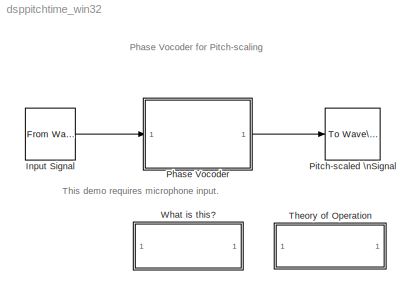
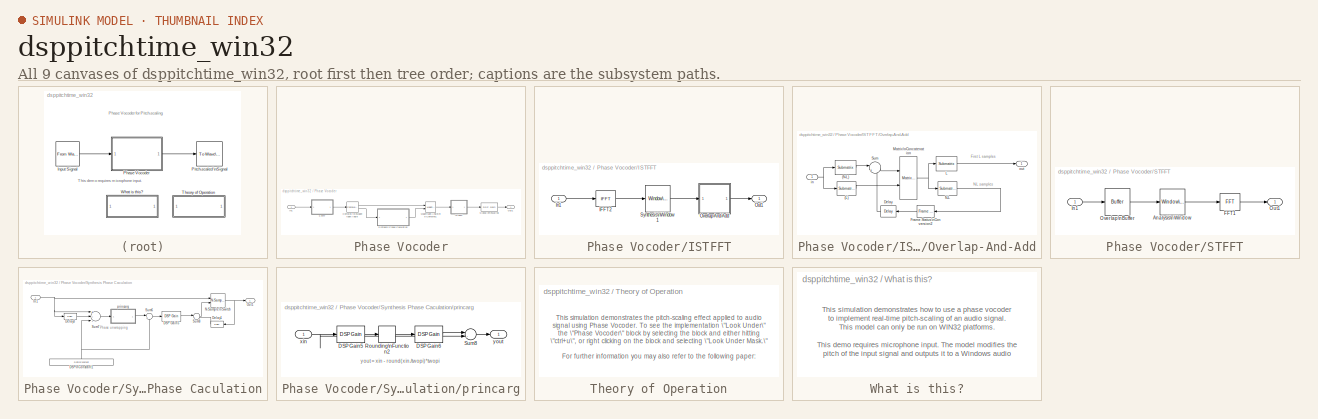
[diagram: thumbnail index - all 9 canvases of the model, root first then tree order]
MODEL dsppitchtime_win32
KIND model
BLOCK [Reference] Input Signal  REF=dspwin32/From Wave\nDevice
  Ports = [0, 1]
  QueueDuration = 3
  SampleRate = 8000
  SampleWidth = 16
  SamplesPerFrame = 64
  SourceBlock = dspwin32/From Wave\nDevice
  SourceType = From Wave Device
  Stereo = off
  UserRate = 16000
  dType = double
  useDefaultDevice = on
  userDeviceID = INPUTDEVS
BLOCK [SubSystem] Phase Vocoder
  MaskCallbackString = ||
  MaskDescription = Algorithm for time-stretching and pitch-scaling of an audio signal. Time-stretching changes the speed of an audio signal without affecting its pitch. Pitch-scaling changes the pitch of an audio signal without affecting its speed. \n\nThe pitch-scaling and time-stretching factors are defined by the ratio of the Synthesis hop-size parameter to the Analysis hop-size parameter. \n\nThe Window size par...<+204ch>
  MaskDisplay = disp('Phase Vocoder')
  MaskEnableString = on,on,on
  MaskIconFrame = on
  MaskIconOpaque = on
  MaskIconRotate = none
  MaskIconUnits = autoscale
  MaskPromptString = Analysis hop-size (i.e., temporal shift of analysis window) (in samples):|Window size (in samples):|Synthesis hop-size (i.e., temporal shift of synthesis window) (in samples):
  MaskStyleString = edit,edit,edit
  MaskTabNameString = ,,
  MaskToolTipString = on,on,on
  MaskTunableValueString = off,off,off
  MaskType = Phase Vocoder
  MaskValueString = 64|256|90
  MaskVarAliasString = ,,
  MaskVariables = ana_hopSize=@1;winLen=@2;syn_hopSize=@3;
  MaskVisibilityString = on,on,on
  MinAlgLoopOccurrences = off
  Ports = [1, 1]
  PropExecContextAcrossSSBoundary = on
  RTWSystemCode = Auto
  TreatAsAtomicUnit = off
BLOCK [ComplexToMagnitudeAngle] Phase Vocoder/Complex to\nMagnitude-Angle
  Output = Magnitude and angle
  Ports = [1, 2]
BLOCK [SubSystem] Phase Vocoder/ISTFFT
  MaskDisplay = disp('Overlap\\nIST-FFT')
  MaskIconFrame = on
  MaskIconOpaque = on
  MaskIconRotate = none
  MaskIconUnits = autoscale
  MinAlgLoopOccurrences = off
  Ports = [1, 1]
  PropExecContextAcrossSSBoundary = on
  RTWSystemCode = Auto
  TreatAsAtomicUnit = off
BLOCK [Reference] Phase Vocoder/ISTFFT/IFFT2  REF=dspxfrm3/IFFT
  BitRevOrder = off
  CompMethod = Table lookup
  DialogController = dspDDGCreate
  DialogControllerArgs = DataTag0
  Ports = [1, 1]
  SkipNorm = on
  SourceBlock = dspxfrm3/IFFT
  SourceType = IFFT
  TableOpt = Speed
  accumFracLength = 30
  accumMode = Same as product output
  accumWordLength = 32
  additionalParams = off
  allowOverrides = on
  cs_in = on
  firstCoeffFracLength = 15
  firstCoeffMode = User-defined
  firstCoeffWordLength = 16
  mode = Complex
  outputFracLength = 15
  outputMode = Same as input
  outputWordLength = 16
  overflowMode = off
  prodOutputFracLength = 30
  prodOutputMode = Same as input
  prodOutputWordLength = 32
  roundingMode = Floor
BLOCK [Inport] Phase Vocoder/ISTFFT/In1
  IconDisplay = Port number
  LatchInput = off
BLOCK [Outport] Phase Vocoder/ISTFFT/Out1
  BusOutputAsStruct = off
  IconDisplay = Port number
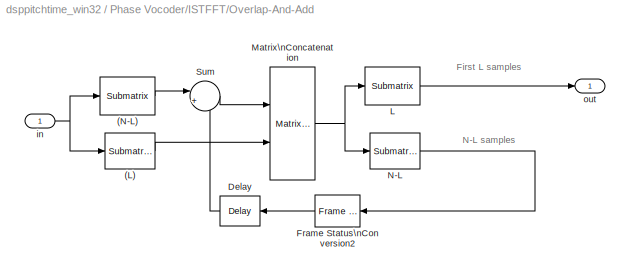
BLOCK [SubSystem] Phase Vocoder/ISTFFT/Overlap-And-Add
  MaskDescription = Performs overlap-and-add on the input signal. Disjoint frames of the input signal are overlapped with each other for a specified number of points and summed. \n
  MaskDisplay = disp('Overlap\\nAnd\\nAdd')
  MaskEnableString = on
  MaskIconFrame = on
  MaskIconOpaque = on
  MaskIconRotate = none
  MaskIconUnits = autoscale
  MaskPromptString = Number of new points in each frame
  MaskStyleString = edit
  MaskToolTipString = on
  MaskTunableValueString = on
  MaskType = Overlap-And-Add
  MaskValueString = syn_hopSize
  MaskVariables = L=@1;
  MaskVisibilityString = on
  MinAlgLoopOccurrences = off
  Ports = [1, 1]
  PropExecContextAcrossSSBoundary = on
  RTWSystemCode = Auto
  TreatAsAtomicUnit = off
BLOCK [Reference] Phase Vocoder/ISTFFT/Overlap-And-Add/(L)  REF=dspmtrx3/Submatrix
  ColEndIndex = 1
  ColEndMode = Last
  ColSpan = All columns
  ColStartIndex = 1
  ColStartMode = First
  Ports = [1, 1]
  RowEndIndex = 1
  RowEndMode = Last
  RowSpan = Range of rows
  RowStartIndex = L-1
  RowStartMode = Offset from last
  SourceBlock = dspmtrx3/Submatrix
  SourceType = Submatrix
BLOCK [Reference] Phase Vocoder/ISTFFT/Overlap-And-Add/(N-L)  REF=dspmtrx3/Submatrix
  ColEndIndex = 1
  ColEndMode = Last
  ColSpan = All columns
  ColStartIndex = 1
  ColStartMode = First
  Ports = [1, 1]
  RowEndIndex = L
  RowEndMode = Offset from last
  RowSpan = Range of rows
  RowStartIndex = 1
  RowStartMode = First
  SourceBlock = dspmtrx3/Submatrix
  SourceType = Submatrix
BLOCK [Reference] Phase Vocoder/ISTFFT/Overlap-And-Add/Delay  REF=dspsigops/Delay
  Ports = [1, 1]
  SourceBlock = dspsigops/Delay
  SourceType = Delay
  delay = 1
  dif_ic_for_ch = off
  dif_ic_for_dly = off
  dly_unit = Samples
  ic = 0
  ic_detail = off
  reset_popup = None
BLOCK [Reference] Phase Vocoder/ISTFFT/Overlap-And-Add/Frame Status\nConversion2  REF=dspsigattribs/Frame Status\nConversion
  Ports = [1, 1]
  ShowPortLabels = off
  SourceBlock = dspsigattribs/Frame Status\nConversion
  SourceType = Frame Status Conversion
  growRefPort = off
  outframe = Sample-based
BLOCK [Reference] Phase Vocoder/ISTFFT/Overlap-And-Add/L  REF=dspmtrx3/Submatrix
  ColEndIndex = 1
  ColEndMode = Last
  ColSpan = All columns
  ColStartIndex = 1
  ColStartMode = First
  Ports = [1, 1]
  RowEndIndex = L
  RowEndMode = Index
  RowSpan = Range of rows
  RowStartIndex = 1
  RowStartMode = First
  SourceBlock = dspmtrx3/Submatrix
  SourceType = Submatrix
BLOCK [Reference] Phase Vocoder/ISTFFT/Overlap-And-Add/Matrix\nConcatenation  REF=simulink/Math\nOperations/Matrix\nConcatenation
  Ports = [2, 1]
  SourceBlock = simulink/Math\nOperations/Matrix\nConcatenation
  SourceType = Matrix Concatenation
  catMethod = Vertical
  numInports = 2
BLOCK [Reference] Phase Vocoder/ISTFFT/Overlap-And-Add/N-L  REF=dspmtrx3/Submatrix
  ColEndIndex = 1
  ColEndMode = Last
  ColSpan = All columns
  ColStartIndex = 1
  ColStartMode = First
  Ports = [1, 1]
  RowEndIndex = 1
  RowEndMode = Last
  RowSpan = Range of rows
  RowStartIndex = L+1
  RowStartMode = Index
  SourceBlock = dspmtrx3/Submatrix
  SourceType = Submatrix
BLOCK [Sum] Phase Vocoder/ISTFFT/Overlap-And-Add/Sum
  IconShape = round
  Inputs = |++
  Ports = [2, 1]
BLOCK [Inport] Phase Vocoder/ISTFFT/Overlap-And-Add/in
  IconDisplay = Port number
  LatchInput = off
BLOCK [Outport] Phase Vocoder/ISTFFT/Overlap-And-Add/out
  BusOutputAsStruct = off
  IconDisplay = Port number
BLOCK [Reference] Phase Vocoder/ISTFFT/Synthesis\nWindow1  REF=dspsigops/Window\nFunction
  DialogController = dspDDGCreate
  DialogControllerArgs = DataTag1
  N = 64
  OptParams = off
  Ports = [1, 1]
  Rs = 50
  SourceBlock = dspsigops/Window\nFunction
  SourceType = Window Function
  UserParams = {1.0}
  UserWindow = hamming
  additionalParams = off
  allowOverrides = on
  beta = 10
  dataType = double
  firstCoeffFracLength = 15
  firstCoeffMode = Same word length as input
  firstCoeffWordLength = 16
  fracBitsMode = Best precision
  isSigned = on
  numFracBits = 15
  outputFracLength = 15
  outputMode = Same as input
  outputWordLength = 16
  overflowMode = off
  prodOutputFracLength = 15
  prodOutputMode = Inherit via internal rule
  prodOutputWordLength = 16
  roundingMode = Floor
  sampmode = Continuous
  samptime = 1
  udDataType = sfix(16)
  winmode = Apply window to input
  winsamp = Periodic
  wintype = Hanning
  wordLen = 16
BLOCK [Inport] Phase Vocoder/In1
  IconDisplay = Port number
  LatchInput = off
BLOCK [MagnitudeAngleToComplex] Phase Vocoder/Magnitude-Angle\nto Complex1
  Input = Magnitude and angle
  Ports = [2, 1]
BLOCK [Outport] Phase Vocoder/Out1
  BusOutputAsStruct = off
  IconDisplay = Port number
BLOCK [SubSystem] Phase Vocoder/STFFT
  MaskDisplay = disp('Overlap\\nST-FFT')
  MaskIconFrame = on
  MaskIconOpaque = on
  MaskIconRotate = none
  MaskIconUnits = autoscale
  MinAlgLoopOccurrences = off
  Ports = [1, 1]
  PropExecContextAcrossSSBoundary = on
  RTWSystemCode = Auto
  TreatAsAtomicUnit = off
BLOCK [Reference] Phase Vocoder/STFFT/Analysis\nWindow  REF=dspsigops/Window\nFunction
  N = 64
  OptParams = off
  Ports = [1, 1]
  Rs = 50
  SourceBlock = dspsigops/Window\nFunction
  SourceType = Window Function
  UserParams = {1.0}
  UserWindow = hamming
  additionalParams = off
  allowOverrides = on
  beta = 10
  dataType = double
  firstCoeffFracLength = 15
  firstCoeffMode = Same word length as input
  firstCoeffWordLength = 16
  fracBitsMode = Best precision
  numFracBits = 15
  outputFracLength = 15
  outputMode = Same as input
  outputWordLength = 16
  overflowMode = off
  prodOutputFracLength = 15
  prodOutputMode = Inherit via internal rule
  prodOutputWordLength = 16
  roundingMode = Floor
  sampmode = Continuous
  samptime = 1
  udDataType = sfix(16)
  winmode = Apply window to input
  winsamp = Periodic
  wintype = Hanning
  wordLen = 16
BLOCK [Reference] Phase Vocoder/STFFT/FFT1  REF=dspxfrm3/FFT
  BitRevOrder = off
  CompMethod = Table lookup
  Ports = [1, 1]
  SkipNorm = off
  SourceBlock = dspxfrm3/FFT
  SourceType = FFT
  TableOpt = Speed
  accumFracLength = 30
  accumMode = Same as product output
  accumWordLength = 32
  additionalParams = off
  allowOverrides = on
  firstCoeffFracLength = 15
  firstCoeffMode = User-defined
  firstCoeffWordLength = 16
  outputFracLength = 15
  outputMode = Same as input
  outputWordLength = 16
  overflowMode = off
  prodOutputFracLength = 30
  prodOutputMode = Same as input
  prodOutputWordLength = 32
  roundingMode = Floor
BLOCK [Inport] Phase Vocoder/STFFT/In1
  IconDisplay = Port number
  LatchInput = off
BLOCK [Outport] Phase Vocoder/STFFT/Out1
  BusOutputAsStruct = off
  IconDisplay = Port number
BLOCK [Reference] Phase Vocoder/STFFT/Overlap\nBuffer  REF=dspbuff3/Buffer
  N = winLen
  Ports = [1, 1]
  SourceBlock = dspbuff3/Buffer
  SourceType = Buffer
  V = winLen-ana_hopSize
  ic = 0
BLOCK [Reference] Phase Vocoder/Signal\nRescaling  REF=dspobslib/DSP Gain
  Ports = [1, 1]
  ShowPortLabels = on
  SourceBlock = dspobslib/DSP Gain
  SourceType = DSP Gain
  additionalParams = off
  allowOverrides = on
  gainFracLength = 15
  gainMode = Same as input
  gainValue = 1/(winLen*sum(hanning(winLen,'periodic').^2)/syn_hopSize)
  gainWordLength = 16
  overflowMode = off
  prodOutputFracLength = 30
  prodOutputMode = Same as input
  prodOutputWordLength = 32
  roundingMode = Floor
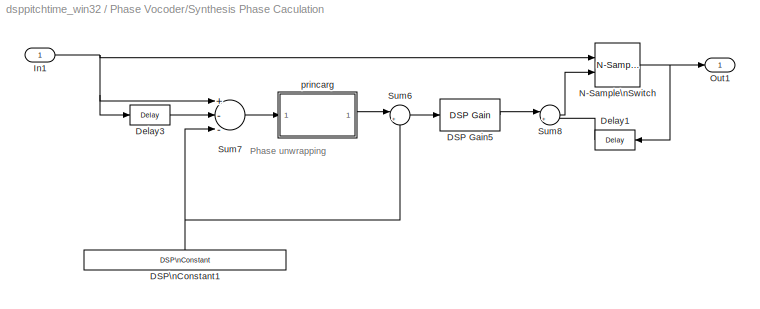
BLOCK [SubSystem] Phase Vocoder/Synthesis Phase Caculation
  MaskCallbackString = ||
  MaskDisplay = disp('Synthesis\\nPhase\\nCalculation')
  MaskEnableString = on,on,on
  MaskIconFrame = on
  MaskIconOpaque = on
  MaskIconRotate = none
  MaskIconUnits = autoscale
  MaskPromptString = Analysis hop size:|Synthesis hop size:|Window size:
  MaskStyleString = edit,edit,edit
  MaskTabNameString = ,,
  MaskToolTipString = on,on,on
  MaskTunableValueString = off,off,off
  MaskValueString = ana_hopSize|syn_hopSize|winLen
  MaskVarAliasString = ,,
  MaskVariables = ana_hopSize=@1;syn_hopSize=@2;winLen=@3;
  MaskVisibilityString = on,on,on
  MinAlgLoopOccurrences = off
  Ports = [1, 1]
  PropExecContextAcrossSSBoundary = on
  RTWSystemCode = Auto
  TreatAsAtomicUnit = off
BLOCK [Reference] Phase Vocoder/Synthesis Phase Caculation/DSP Gain5  REF=dspobslib/DSP Gain
  Ports = [1, 1]
  ShowPortLabels = on
  SourceBlock = dspobslib/DSP Gain
  SourceType = DSP Gain
  additionalParams = off
  allowOverrides = on
  gainFracLength = 15
  gainMode = Same as input
  gainValue = syn_hopSize/ana_hopSize
  gainWordLength = 16
  overflowMode = off
  prodOutputFracLength = 30
  prodOutputMode = Same as input
  prodOutputWordLength = 32
  roundingMode = Floor
BLOCK [Reference] Phase Vocoder/Synthesis Phase Caculation/DSP\nConstant1  REF=dspsrcs4/DSP\nConstant
  FramebasedOutput = -inf
  InterpretAs1D = -inf
  Ports = [0, 1]
  SampleMode = Discrete
  ShowPortLabels = on
  SourceBlock = dspsrcs4/DSP\nConstant
  SourceType = DSP Constant
  Ts = -inf
  Value = 2*pi*ana_hopSize*[0:winLen-1]'/winLen
  additionalParams = off
  allowOverrides = on
  continuousOutput = Sample-based
  dataType = Inherit from 'Constant value'
  discreteOutput = Sample-based
  fracBitsMode = Best precision
  framePeriod = 2
  isSigned = on
  numFracBits = 15
  sampTime = 64/8000
  udDataType = sfix(16)
  wordLen = 16
BLOCK [Reference] Phase Vocoder/Synthesis Phase Caculation/Delay1  REF=dspsigops/Delay
  Ports = [1, 1]
  SourceBlock = dspsigops/Delay
  SourceType = Delay
  delay = 1
  dif_ic_for_ch = off
  dif_ic_for_dly = off
  dly_unit = Frames
  ic = 0
  ic_detail = on
  reset_popup = None
BLOCK [Reference] Phase Vocoder/Synthesis Phase Caculation/Delay3  REF=dspsigops/Delay
  Ports = [1, 1]
  SourceBlock = dspsigops/Delay
  SourceType = Delay
  delay = 1
  dif_ic_for_ch = off
  dif_ic_for_dly = off
  dly_unit = Frames
  ic = 0
  ic_detail = on
  reset_popup = None
BLOCK [Inport] Phase Vocoder/Synthesis Phase Caculation/In1
  IconDisplay = Port number
  LatchInput = off
BLOCK [Reference] Phase Vocoder/Synthesis Phase Caculation/N-Sample\nSwitch  REF=dspswit3/N-Sample\nSwitch
  N = 1
  Ports = [2, 1]
  ShowPortLabels = on
  SourceBlock = dspswit3/N-Sample\nSwitch
  SourceType = N-Sample Switch
  TriggerType = Rising edge
  Ts = -1
  reset = off
BLOCK [Outport] Phase Vocoder/Synthesis Phase Caculation/Out1
  BusOutputAsStruct = off
  IconDisplay = Port number
BLOCK [Sum] Phase Vocoder/Synthesis Phase Caculation/Sum6
  IconShape = round
  InputSameDT = off
  Inputs = |++
  OutDataTypeMode = Inherit via internal rule
  Ports = [2, 1]
BLOCK [Sum] Phase Vocoder/Synthesis Phase Caculation/Sum7
  InputSameDT = off
  Inputs = +--
  OutDataTypeMode = Inherit via internal rule
  Ports = [3, 1]
BLOCK [Sum] Phase Vocoder/Synthesis Phase Caculation/Sum8
  IconShape = round
  InputSameDT = off
  Inputs = |++
  OutDataTypeMode = Inherit via internal rule
  Ports = [2, 1]
BLOCK [SubSystem] Phase Vocoder/Synthesis Phase Caculation/princarg
  MaskDisplay = disp('Principal\\nArgument');
  MaskIconFrame = on
  MaskIconOpaque = on
  MaskIconRotate = none
  MaskIconUnits = autoscale
  MinAlgLoopOccurrences = off
  Ports = [1, 1]
  PropExecContextAcrossSSBoundary = on
  RTWSystemCode = Auto
  TreatAsAtomicUnit = off
BLOCK [Reference] Phase Vocoder/Synthesis Phase Caculation/princarg/DSP Gain5  REF=dspobslib/DSP Gain
  Ports = [1, 1]
  ShowPortLabels = on
  SourceBlock = dspobslib/DSP Gain
  SourceType = DSP Gain
  additionalParams = off
  allowOverrides = on
  gainFracLength = 15
  gainMode = Same as input
  gainValue = 1/(2*pi)
  gainWordLength = 16
  overflowMode = off
  prodOutputFracLength = 30
  prodOutputMode = Same as input
  prodOutputWordLength = 32
  roundingMode = Floor
BLOCK [Reference] Phase Vocoder/Synthesis Phase Caculation/princarg/DSP Gain6  REF=dspobslib/DSP Gain
  Ports = [1, 1]
  ShowPortLabels = on
  SourceBlock = dspobslib/DSP Gain
  SourceType = DSP Gain
  additionalParams = off
  allowOverrides = on
  gainFracLength = 15
  gainMode = Same as input
  gainValue = 2*pi
  gainWordLength = 16
  overflowMode = off
  prodOutputFracLength = 30
  prodOutputMode = Same as input
  prodOutputWordLength = 32
  roundingMode = Floor
BLOCK [Rounding] Phase Vocoder/Synthesis Phase Caculation/princarg/Rounding\nFunction2
  Operator = round
BLOCK [Sum] Phase Vocoder/Synthesis Phase Caculation/princarg/Sum8
  IconShape = round
  InputSameDT = off
  Inputs = |-+
  OutDataTypeMode = Inherit via internal rule
  Ports = [2, 1]
BLOCK [Inport] Phase Vocoder/Synthesis Phase Caculation/princarg/xin
  IconDisplay = Port number
  LatchInput = off
BLOCK [Outport] Phase Vocoder/Synthesis Phase Caculation/princarg/yout
  BusOutputAsStruct = off
  IconDisplay = Port number
BLOCK [Reference] Pitch-scaled \nSignal  REF=dspwin32/To Wave\nDevice
  Ports = [1]
  SourceBlock = dspwin32/To Wave\nDevice
  SourceType = To Wave Device
  bufDuration = 2
  enable24Bit = off
  initDelay = 0.1
  useDefaultDevice = on
  userDeviceID = OUTPUTDEVS
BLOCK [SubSystem] Theory of Operation
  MaskDisplay = disp('Theory of\\nOperation')
  MaskIconFrame = on
  MaskIconOpaque = on
  MaskIconRotate = none
  MaskIconUnits = autoscale
  MaskType = Theory of Operation
  MinAlgLoopOccurrences = off
  Ports = []
  PropExecContextAcrossSSBoundary = on
  RTWSystemCode = Auto
  TreatAsAtomicUnit = off
BLOCK [SubSystem] What is this?
  MaskDisplay = disp('What is this?')
  MaskIconFrame = on
  MaskIconOpaque = on
  MaskIconRotate = none
  MaskIconUnits = autoscale
  MaskType = Frame-Based Simulation Info
  MinAlgLoopOccurrences = off
  Ports = []
  PropExecContextAcrossSSBoundary = on
  RTWSystemCode = Auto
  TreatAsAtomicUnit = off
ANNOTATION (root): Phase Vocoder for Pitch-scaling
ANNOTATION (root): This demo requires microphone input.
ANNOTATION Phase Vocoder/ISTFFT/Overlap-And-Add: First L samples
ANNOTATION Phase Vocoder/ISTFFT/Overlap-And-Add: N-L samples
ANNOTATION Phase Vocoder/Synthesis Phase Caculation: Phase unwrapping
ANNOTATION Phase Vocoder/Synthesis Phase Caculation/princarg: yout = xin - round(xin./twopi)*twopi
ANNOTATION Theory of Operation: This simulation demonstrates the pitch-scaling effect applied to audio \nsignal using Phase Vocoder. To see the implementation \"Look Under\" \nthe \"Phase Vocoder\" block by selecting the block and either hitting \n\"ctrl+u\", or right clicking on the block and selecting \"Look Under Mask.\"\n\nFor further information you may also refer to the following paper:\nA. D. Gotzen, N. Bernardini and D. ...<+191ch>
ANNOTATION What is this?: This simulation demonstrates how to use a phase vocoder \nto implement real-time pitch-scaling of an audio signal. \nThis model can only be run on WIN32 platforms.\n\nThis demo requires microphone input. The model modifies the \npitch of the input signal and outputs it to a Windows audio \ndevice while the simulation is running.\n\nDouble-click the Phase Vocoder block. Change the Synthesis \nhop-s...<+281ch>
LINE Input Signal:1 -> Phase Vocoder:1
LINE Phase Vocoder/Complex to\nMagnitude-Angle:1 -> Phase Vocoder/Magnitude-Angle\nto Complex1:1
LINE Phase Vocoder/Complex to\nMagnitude-Angle:2 -> Phase Vocoder/Synthesis Phase Caculation:1
LINE Phase Vocoder/ISTFFT/IFFT2:1 -> Phase Vocoder/ISTFFT/Synthesis\nWindow1:1
LINE Phase Vocoder/ISTFFT/In1:1 -> Phase Vocoder/ISTFFT/IFFT2:1
LINE Phase Vocoder/ISTFFT/Overlap-And-Add/(L):1 -> Phase Vocoder/ISTFFT/Overlap-And-Add/Matrix\nConcatenation:2
LINE Phase Vocoder/ISTFFT/Overlap-And-Add/(N-L):1 -> Phase Vocoder/ISTFFT/Overlap-And-Add/Sum:1
LINE Phase Vocoder/ISTFFT/Overlap-And-Add/Delay:1 -> Phase Vocoder/ISTFFT/Overlap-And-Add/Sum:2
LINE Phase Vocoder/ISTFFT/Overlap-And-Add/Frame Status\nConversion2:1 -> Phase Vocoder/ISTFFT/Overlap-And-Add/Delay:1
LINE Phase Vocoder/ISTFFT/Overlap-And-Add/L:1 -> Phase Vocoder/ISTFFT/Overlap-And-Add/out:1
NET Phase Vocoder/ISTFFT/Overlap-And-Add/Matrix\nConcatenation:1 -> Phase Vocoder/ISTFFT/Overlap-And-Add/L:1, Phase Vocoder/ISTFFT/Overlap-And-Add/N-L:1
LINE Phase Vocoder/ISTFFT/Overlap-And-Add/N-L:1 -> Phase Vocoder/ISTFFT/Overlap-And-Add/Frame Status\nConversion2:1
LINE Phase Vocoder/ISTFFT/Overlap-And-Add/Sum:1 -> Phase Vocoder/ISTFFT/Overlap-And-Add/Matrix\nConcatenation:1
NET Phase Vocoder/ISTFFT/Overlap-And-Add/in:1 -> Phase Vocoder/ISTFFT/Overlap-And-Add/(L):1, Phase Vocoder/ISTFFT/Overlap-And-Add/(N-L):1
LINE Phase Vocoder/ISTFFT/Overlap-And-Add:1 -> Phase Vocoder/ISTFFT/Out1:1
LINE Phase Vocoder/ISTFFT/Synthesis\nWindow1:1 -> Phase Vocoder/ISTFFT/Overlap-And-Add:1
LINE Phase Vocoder/ISTFFT:1 -> Phase Vocoder/Signal\nRescaling:1
LINE Phase Vocoder/In1:1 -> Phase Vocoder/STFFT:1
LINE Phase Vocoder/Magnitude-Angle\nto Complex1:1 -> Phase Vocoder/ISTFFT:1
LINE Phase Vocoder/STFFT/Analysis\nWindow:1 -> Phase Vocoder/STFFT/FFT1:1
LINE Phase Vocoder/STFFT/FFT1:1 -> Phase Vocoder/STFFT/Out1:1
LINE Phase Vocoder/STFFT/In1:1 -> Phase Vocoder/STFFT/Overlap\nBuffer:1
LINE Phase Vocoder/STFFT/Overlap\nBuffer:1 -> Phase Vocoder/STFFT/Analysis\nWindow:1
LINE Phase Vocoder/STFFT:1 -> Phase Vocoder/Complex to\nMagnitude-Angle:1
LINE Phase Vocoder/Signal\nRescaling:1 -> Phase Vocoder/Out1:1
LINE Phase Vocoder/Synthesis Phase Caculation/DSP Gain5:1 -> Phase Vocoder/Synthesis Phase Caculation/Sum8:1
NET Phase Vocoder/Synthesis Phase Caculation/DSP\nConstant1:1 -> Phase Vocoder/Synthesis Phase Caculation/Sum6:2, Phase Vocoder/Synthesis Phase Caculation/Sum7:3
LINE Phase Vocoder/Synthesis Phase Caculation/Delay1:1 -> Phase Vocoder/Synthesis Phase Caculation/Sum8:2
LINE Phase Vocoder/Synthesis Phase Caculation/Delay3:1 -> Phase Vocoder/Synthesis Phase Caculation/Sum7:2
NET Phase Vocoder/Synthesis Phase Caculation/In1:1 -> Phase Vocoder/Synthesis Phase Caculation/Delay3:1, Phase Vocoder/Synthesis Phase Caculation/N-Sample\nSwitch:1, Phase Vocoder/Synthesis Phase Caculation/Sum7:1
NET Phase Vocoder/Synthesis Phase Caculation/N-Sample\nSwitch:1 -> Phase Vocoder/Synthesis Phase Caculation/Delay1:1, Phase Vocoder/Synthesis Phase Caculation/Out1:1
LINE Phase Vocoder/Synthesis Phase Caculation/Sum6:1 -> Phase Vocoder/Synthesis Phase Caculation/DSP Gain5:1
LINE Phase Vocoder/Synthesis Phase Caculation/Sum7:1 -> Phase Vocoder/Synthesis Phase Caculation/princarg:1
LINE Phase Vocoder/Synthesis Phase Caculation/Sum8:1 -> Phase Vocoder/Synthesis Phase Caculation/N-Sample\nSwitch:2
LINE Phase Vocoder/Synthesis Phase Caculation/princarg/DSP Gain5:1 -> Phase Vocoder/Synthesis Phase Caculation/princarg/Rounding\nFunction2:1
LINE Phase Vocoder/Synthesis Phase Caculation/princarg/DSP Gain6:1 -> Phase Vocoder/Synthesis Phase Caculation/princarg/Sum8:1
LINE Phase Vocoder/Synthesis Phase Caculation/princarg/Rounding\nFunction2:1 -> Phase Vocoder/Synthesis Phase Caculation/princarg/DSP Gain6:1
LINE Phase Vocoder/Synthesis Phase Caculation/princarg/Sum8:1 -> Phase Vocoder/Synthesis Phase Caculation/princarg/yout:1
NET Phase Vocoder/Synthesis Phase Caculation/princarg/xin:1 -> Phase Vocoder/Synthesis Phase Caculation/princarg/DSP Gain5:1, Phase Vocoder/Synthesis Phase Caculation/princarg/Sum8:2
LINE Phase Vocoder/Synthesis Phase Caculation/princarg:1 -> Phase Vocoder/Synthesis Phase Caculation/Sum6:1
LINE Phase Vocoder/Synthesis Phase Caculation:1 -> Phase Vocoder/Magnitude-Angle\nto Complex1:2
LINE Phase Vocoder:1 -> Pitch-scaled \nSignal:1
note: NET lines group one-source signal fan-out (src -> all destinations, sorted); 1:1 wires keep LINE
